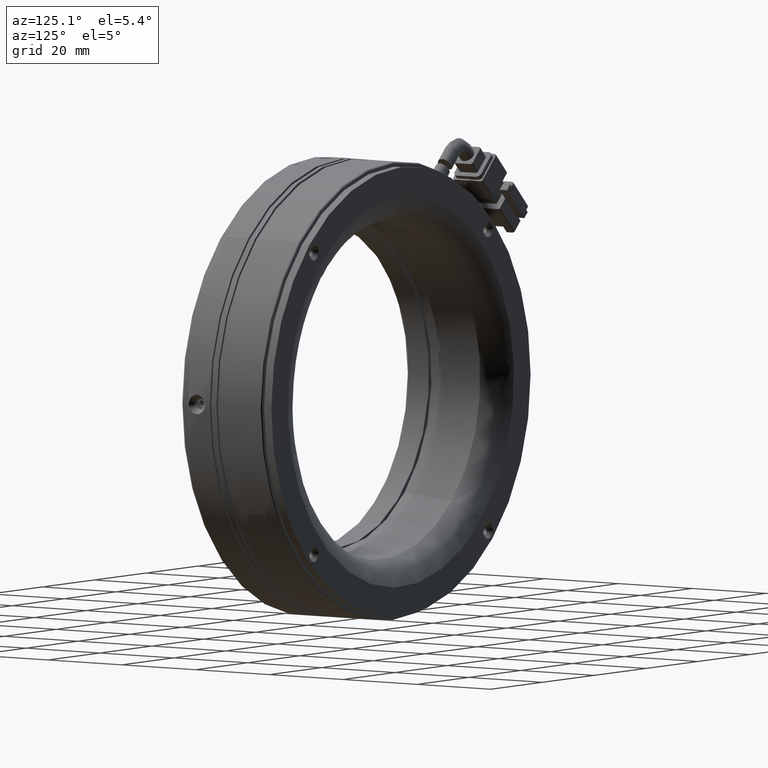
[diagram: clean part render]
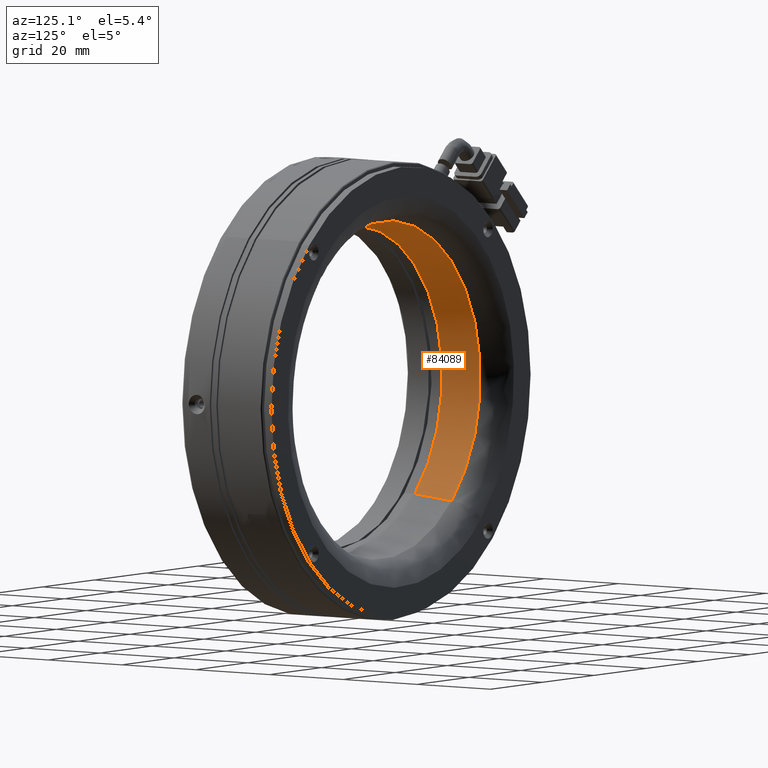
[diagram: same view with one face highlighted and labeled with its STEP entity id]
A machine part, auxiliary view. The second image highlights one B-rep face of the part: STEP entity #84089.
In plain terms, the highlighted conical surface has half-angle 10 deg.
Its self-contained STEP definition (entity closure, byte-faithful):
#1787 = DIRECTION ( 'NONE',  ( -0.7071067811865485700, 0.0000000000000000000, -0.7071067811865465700 ) ) ;
#2416 = EDGE_LOOP ( 'NONE', ( #10694, #22017, #51552, #48049 ) ) ;
#3082 = CIRCLE ( 'NONE', #70385, 37.68601622387225100 ) ;
#5473 = LINE ( 'NONE', #67422, #54389 ) ;
#7409 = CARTESIAN_POINT ( 'NONE',  ( -25.49881428618152400, 11.23180113905660900, -25.49881428618178300 ) ) ;
#10694 = ORIENTED_EDGE ( 'NONE', *, *, #55393, .F. ) ;
#17788 = EDGE_CURVE ( 'NONE', #34181, #27731, #3082, .T. ) ;
#19639 = CIRCLE ( 'NONE', #52448, 36.06076898795116400 ) ;
#20365 = EDGE_CURVE ( 'NONE', #40087, #34181, #5473, .T. ) ;
#22017 = ORIENTED_EDGE ( 'NONE', *, *, #49618, .T. ) ;
#23683 = DIRECTION ( 'NONE',  ( 0.7071067811865485700, 0.0000000000000000000, 0.7071067811865465700 ) ) ;
#23817 = LINE ( 'NONE', #90448, #62455 ) ;
#23934 = DIRECTION ( 'NONE',  ( 0.1227878039689699300, 0.9848077530122089100, 0.1227878039689695600 ) ) ;
#25306 = CONICAL_SURFACE ( 'NONE', #68510, 37.68601622387225100, 0.1745329251994285300 ) ;
#27731 = VERTEX_POINT ( 'NONE', #37940 ) ;
#34181 = VERTEX_POINT ( 'NONE', #77211 ) ;
#37940 = CARTESIAN_POINT ( 'NONE',  ( -26.64803762780602300, 20.44903624052007300, -26.64803762780628200 ) ) ;
#38033 = DIRECTION ( 'NONE',  ( -5.593399160027876600E-020, 1.000000000000000000, -5.741257191681600800E-020 ) ) ;
#40087 = VERTEX_POINT ( 'NONE', #70284 ) ;
#40898 = DIRECTION ( 'NONE',  ( -5.593399160027876600E-020, 1.000000000000000000, -5.741257191681600800E-020 ) ) ;
#45312 = DIRECTION ( 'NONE',  ( 5.593399160027876600E-020, -1.000000000000000000, 5.741257191681600800E-020 ) ) ;
#46845 = DIRECTION ( 'NONE',  ( -0.1227878039689699100, 0.9848077530122089100, -0.1227878039689695900 ) ) ;
#48049 = ORIENTED_EDGE ( 'NONE', *, *, #20365, .F. ) ;
#49618 = EDGE_CURVE ( 'NONE', #83985, #27731, #23817, .T. ) ;
#51552 = ORIENTED_EDGE ( 'NONE', *, *, #17788, .F. ) ;
#52448 = AXIS2_PLACEMENT_3D ( 'NONE', #84440, #40898, #91784 ) ;
#53794 = FACE_OUTER_BOUND ( 'NONE', #2416, .T. ) ;
#54389 = VECTOR ( 'NONE', #23934, 999.9999999999998900 ) ;
#55393 = EDGE_CURVE ( 'NONE', #83985, #40087, #19639, .T. ) ;
#62455 = VECTOR ( 'NONE', #46845, 999.9999999999998900 ) ;
#67422 = CARTESIAN_POINT ( 'NONE',  ( 26.64803762780669100, 20.44903624052007600, 26.64803762780628200 ) ) ;
#68510 = AXIS2_PLACEMENT_3D ( 'NONE', #74258, #38033, #23683 ) ;
#70284 = CARTESIAN_POINT ( 'NONE',  ( 25.49881428618219600, 11.23180113905660900, 25.49881428618178700 ) ) ;
#70385 = AXIS2_PLACEMENT_3D ( 'NONE', #88843, #45312, #1787 ) ;
#74258 = CARTESIAN_POINT ( 'NONE',  ( 3.317160594367525600E-013, 20.44903624052007600, 2.765983579064349600E-015 ) ) ;
#77211 = CARTESIAN_POINT ( 'NONE',  ( 26.64803762780669100, 20.44903624052007300, 26.64803762780628200 ) ) ;
#83985 = VERTEX_POINT ( 'NONE', #7409 ) ;
#84089 = ADVANCED_FACE ( 'NONE', ( #53794 ), #25306, .F. ) ;
#84440 = CARTESIAN_POINT ( 'NONE',  ( 3.317165749935032900E-013, 11.23180113905660900, 2.766512764237486600E-015 ) ) ;
#88843 = CARTESIAN_POINT ( 'NONE',  ( 3.317160594367525600E-013, 20.44903624052007300, 2.765983579064349600E-015 ) ) ;
#90448 = CARTESIAN_POINT ( 'NONE',  ( -26.64803762780602300, 20.44903624052007600, -26.64803762780628200 ) ) ;
#91784 = DIRECTION ( 'NONE',  ( 0.7071067811865485700, 1.443166791498336800E-016, 0.7071067811865464600 ) ) ;